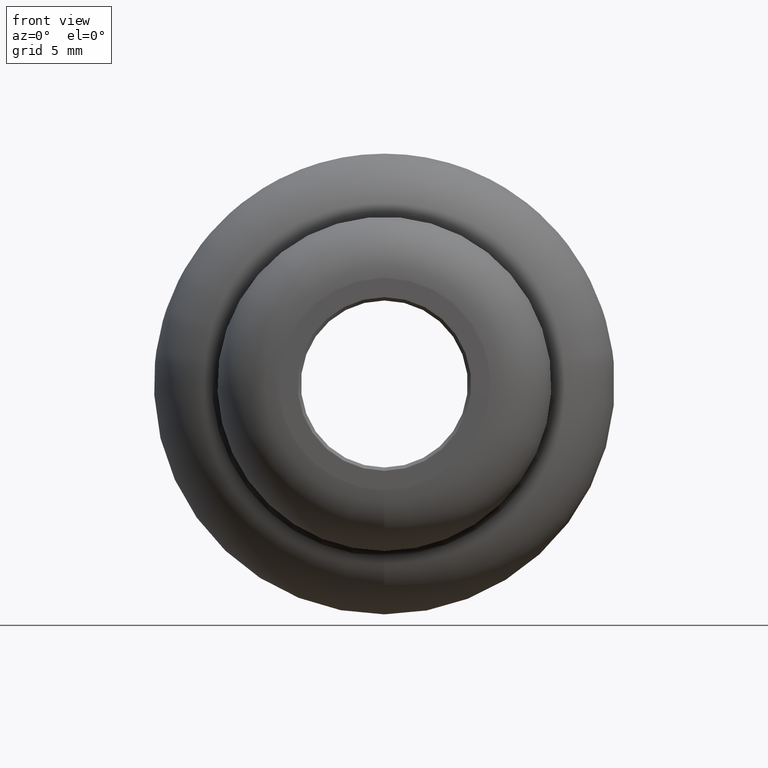
[diagram: clean part render]
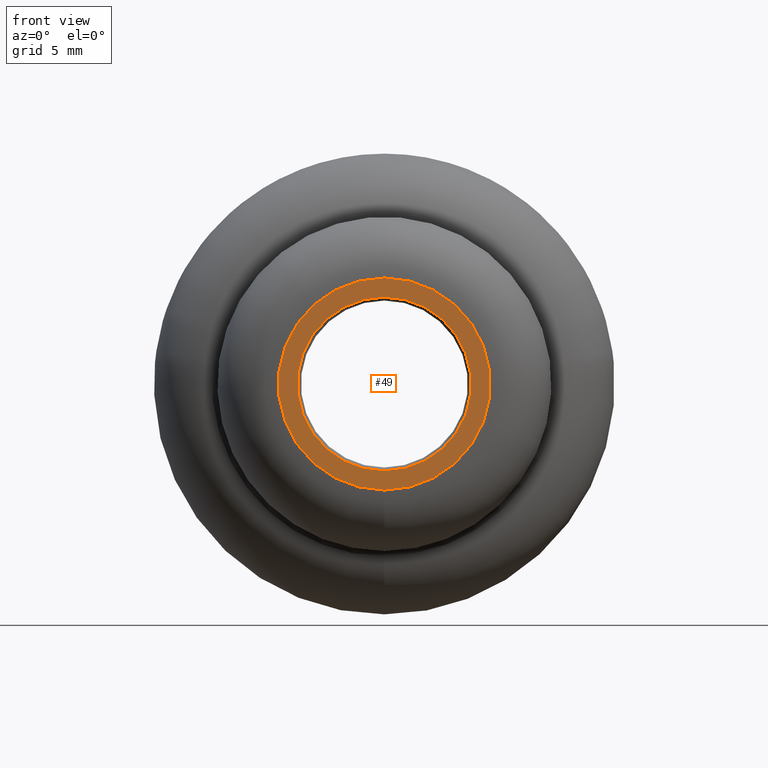
[diagram: same view with one face highlighted and labeled with its STEP entity id]
A machine part, front view. The second image highlights one B-rep face of the part: STEP entity #49.
In plain terms, the highlighted planar face has unit normal (0, -1, -0).
Its self-contained STEP definition (entity closure, byte-faithful):
#2 = CARTESIAN_POINT ( 'NONE',  ( 0.000000000000000000, -12.50000000000000000, 0.000000000000000000 ) ) ;
#3 = EDGE_CURVE ( 'NONE', #181, #181, #79, .T. ) ;
#8 = CARTESIAN_POINT ( 'NONE',  ( 0.000000000000000000, -12.50000000000000000, -6.500000000000005329 ) ) ;
#44 = EDGE_LOOP ( 'NONE', ( #67 ) ) ;
#45 = DIRECTION ( 'NONE',  ( 0.000000000000000000, -1.000000000000000000, -0.000000000000000000 ) ) ;
#49 = ADVANCED_FACE ( 'NONE', ( #125, #293 ), #262, .T. ) ;
#63 = AXIS2_PLACEMENT_3D ( 'NONE', #309, #45, #206 ) ;
#67 = ORIENTED_EDGE ( 'NONE', *, *, #3, .T. ) ;
#70 = CIRCLE ( 'NONE', #141, 7.936961005306948813 ) ;
#71 = ORIENTED_EDGE ( 'NONE', *, *, #72, .T. ) ;
#72 = EDGE_CURVE ( 'NONE', #112, #112, #70, .T. ) ;
#79 = CIRCLE ( 'NONE', #303, 6.500000000000005329 ) ;
#112 = VERTEX_POINT ( 'NONE', #145 ) ;
#125 = FACE_BOUND ( 'NONE', #44, .T. ) ;
#141 = AXIS2_PLACEMENT_3D ( 'NONE', #2, #265, #236 ) ;
#145 = CARTESIAN_POINT ( 'NONE',  ( 0.000000000000000000, -12.50000000000000000, -7.936961005306948813 ) ) ;
#181 = VERTEX_POINT ( 'NONE', #8 ) ;
#189 = EDGE_LOOP ( 'NONE', ( #71 ) ) ;
#204 = DIRECTION ( 'NONE',  ( 0.000000000000000000, 1.000000000000000000, 0.000000000000000000 ) ) ;
#206 = DIRECTION ( 'NONE',  ( 0.000000000000000000, 0.000000000000000000, -1.000000000000000000 ) ) ;
#236 = DIRECTION ( 'NONE',  ( 0.000000000000000000, 0.000000000000000000, -1.000000000000000000 ) ) ;
#256 = CARTESIAN_POINT ( 'NONE',  ( 0.000000000000000000, -12.50000000000000000, 0.000000000000000000 ) ) ;
#262 = PLANE ( 'NONE',  #63 ) ;
#265 = DIRECTION ( 'NONE',  ( -0.000000000000000000, -1.000000000000000000, -0.000000000000000000 ) ) ;
#293 = FACE_OUTER_BOUND ( 'NONE', #189, .T. ) ;
#303 = AXIS2_PLACEMENT_3D ( 'NONE', #256, #204, #304 ) ;
#304 = DIRECTION ( 'NONE',  ( 0.000000000000000000, 0.000000000000000000, -1.000000000000000000 ) ) ;
#309 = CARTESIAN_POINT ( 'NONE',  ( 0.000000000000000000, -12.50000000000000000, 0.000000000000000000 ) ) ;